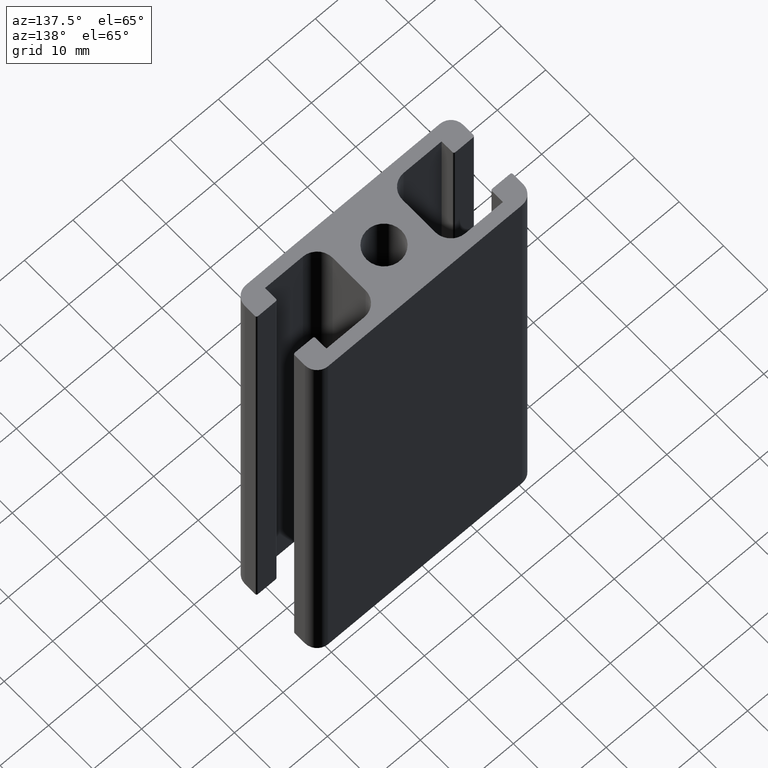
[diagram: clean part render]
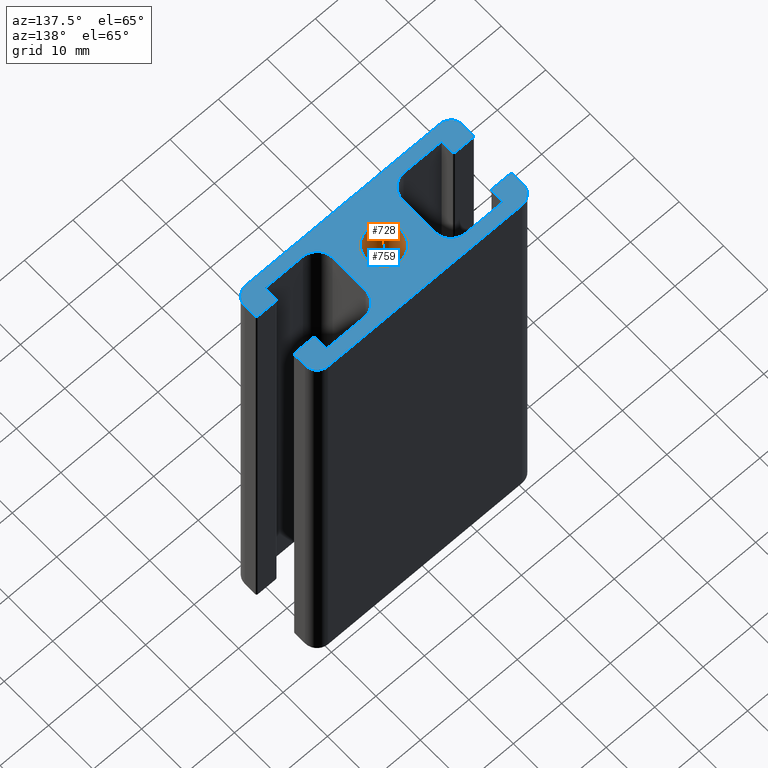
[diagram: same view with the hole feature highlighted: cylindrical wall and planar end face, labeled with their STEP entity ids]
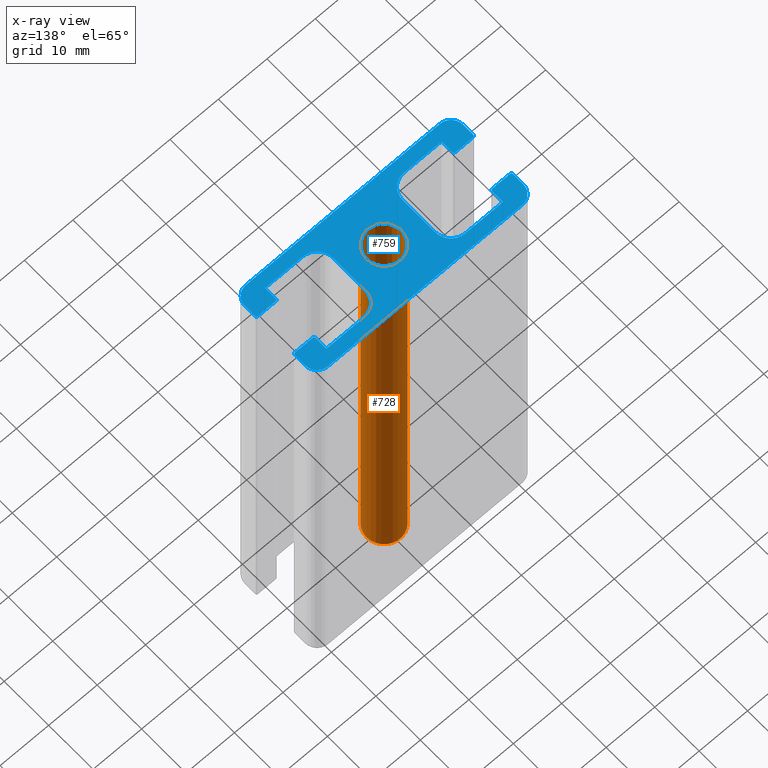
[diagram: x-ray of the same camera — body ghosted, the hole faces saturated]
A machine part, auxiliary view. The highlighted faces form one hole feature of diameter 7.2 mm: the cylindrical wall (entity #728, orange) and its adjacent planar end face (entity #759, blue) — they share a circular edge in the B-rep.
The next image is the same camera in x-ray (body ghosted, the hole faces saturated) — the bore reads through the body.
Wall:
#189=FACE_BOUND('',#232,.T.);
#192=FACE_OUTER_BOUND('',#231,.T.);
#231=EDGE_LOOP('',(#491));
#232=EDGE_LOOP('',(#492));
#273=CIRCLE('',#770,3.6);
#274=CIRCLE('',#771,3.6);
#307=VERTEX_POINT('',#1068);
#308=VERTEX_POINT('',#1070);
#381=EDGE_CURVE('',#307,#307,#273,.T.);
#382=EDGE_CURVE('',#308,#308,#274,.T.);
#491=ORIENTED_EDGE('',*,*,#381,.F.);
#492=ORIENTED_EDGE('',*,*,#382,.F.);
#711=CYLINDRICAL_SURFACE('',#769,3.6);
#728=ADVANCED_FACE('',(#192,#189),#711,.F.);
#769=AXIS2_PLACEMENT_3D('',#1067,#844,#845);
#770=AXIS2_PLACEMENT_3D('',#1069,#846,#847);
#771=AXIS2_PLACEMENT_3D('',#1071,#848,#849);
#844=DIRECTION('center_axis',(0.,0.,1.));
#845=DIRECTION('ref_axis',(-1.,0.,0.));
#846=DIRECTION('center_axis',(0.,0.,-1.));
#847=DIRECTION('ref_axis',(-1.,0.,0.));
#848=DIRECTION('center_axis',(0.,0.,1.));
#849=DIRECTION('ref_axis',(-1.,0.,0.));
#1067=CARTESIAN_POINT('Origin',(0.,0.,0.));
#1068=CARTESIAN_POINT('',(3.6,-4.40872847693047E-16,100.));
#1069=CARTESIAN_POINT('Origin',(0.,0.,100.));
#1070=CARTESIAN_POINT('',(3.6,4.40872847693047E-16,0.));
#1071=CARTESIAN_POINT('Origin',(0.,0.,0.));
End face:
#33=PLANE('',#826);
#39=LINE('',#1083,#115);
#43=LINE('',#1095,#119);
#46=LINE('',#1101,#122);
#50=LINE('',#1113,#126);
#54=LINE('',#1125,#130);
#57=LINE('',#1131,#133);
#61=LINE('',#1143,#137);
#67=LINE('',#1164,#143);
#71=LINE('',#1176,#147);
#74=LINE('',#1182,#150);
#78=LINE('',#1194,#154);
#84=LINE('',#1215,#160);
#88=LINE('',#1227,#164);
#91=LINE('',#1232,#167);
#95=LINE('',#1239,#171);
#96=LINE('',#1242,#172);
#101=LINE('',#1251,#177);
#102=LINE('',#1254,#178);
#105=LINE('',#1262,#181);
#106=LINE('',#1267,#182);
#115=VECTOR('',#860,3.7);
#119=VECTOR('',#872,2.45);
#122=VECTOR('',#877,7.8);
#126=VECTOR('',#889,7.4);
#130=VECTOR('',#901,7.8);
#133=VECTOR('',#906,2.45);
#137=VECTOR('',#918,3.7);
#143=VECTOR('',#938,7.4);
#147=VECTOR('',#950,7.8);
#150=VECTOR('',#955,2.45);
#154=VECTOR('',#967,3.7);
#160=VECTOR('',#987,3.7);
#164=VECTOR('',#999,2.45);
#167=VECTOR('',#1004,7.8);
#171=VECTOR('',#1010,2.3);
#172=VECTOR('',#1013,2.30000000000058);
#177=VECTOR('',#1020,2.3);
#178=VECTOR('',#1023,2.3000000000006);
#181=VECTOR('',#1030,40.);
#182=VECTOR('',#1035,40.);
#190=FACE_BOUND('',#264,.T.);
#223=FACE_OUTER_BOUND('',#263,.T.);
#263=EDGE_LOOP('',(#613,#614,#615,#616,#617,#618,#619,#620,#621,#622,#623,
#624,#625,#626,#627,#628,#629,#630,#631,#632,#633,#634,#635,#636,#637,#638,
#639,#640,#641,#642,#643,#644,#645,#646,#647,#648));
#264=EDGE_LOOP('',(#649));
#273=CIRCLE('',#770,3.6);
#275=CIRCLE('',#773,0.299999999999404);
#277=CIRCLE('',#777,0.299999999999406);
#279=CIRCLE('',#782,3.19999999999359);
#281=CIRCLE('',#786,3.19999999999362);
#283=CIRCLE('',#791,0.299999999999404);
#285=CIRCLE('',#795,0.299999999999407);
#287=CIRCLE('',#798,3.1999999999936);
#289=CIRCLE('',#802,3.1999999999936);
#291=CIRCLE('',#807,0.299999999999406);
#293=CIRCLE('',#811,0.299999999999397);
#295=CIRCLE('',#814,0.299999999999399);
#297=CIRCLE('',#818,0.299999999999404);
#299=CIRCLE('',#827,2.5);
#300=CIRCLE('',#828,2.5);
#301=CIRCLE('',#829,2.5);
#302=CIRCLE('',#830,2.5);
#307=VERTEX_POINT('',#1068);
#309=VERTEX_POINT('',#1073);
#310=VERTEX_POINT('',#1074);
#313=VERTEX_POINT('',#1082);
#315=VERTEX_POINT('',#1088);
#317=VERTEX_POINT('',#1094);
#319=VERTEX_POINT('',#1100);
#321=VERTEX_POINT('',#1106);
#323=VERTEX_POINT('',#1112);
#325=VERTEX_POINT('',#1118);
#327=VERTEX_POINT('',#1124);
#329=VERTEX_POINT('',#1130);
#331=VERTEX_POINT('',#1136);
#333=VERTEX_POINT('',#1142);
#335=VERTEX_POINT('',#1148);
#337=VERTEX_POINT('',#1154);
#338=VERTEX_POINT('',#1155);
#341=VERTEX_POINT('',#1163);
#343=VERTEX_POINT('',#1169);
#345=VERTEX_POINT('',#1175);
#347=VERTEX_POINT('',#1181);
#349=VERTEX_POINT('',#1187);
#351=VERTEX_POINT('',#1193);
#353=VERTEX_POINT('',#1199);
#355=VERTEX_POINT('',#1205);
#356=VERTEX_POINT('',#1206);
#359=VERTEX_POINT('',#1214);
#361=VERTEX_POINT('',#1220);
#363=VERTEX_POINT('',#1226);
#366=VERTEX_POINT('',#1237);
#367=VERTEX_POINT('',#1241);
#370=VERTEX_POINT('',#1249);
#371=VERTEX_POINT('',#1253);
#373=VERTEX_POINT('',#1259);
#374=VERTEX_POINT('',#1261);
#375=VERTEX_POINT('',#1264);
#376=VERTEX_POINT('',#1266);
#381=EDGE_CURVE('',#307,#307,#273,.T.);
#383=EDGE_CURVE('',#309,#310,#275,.T.);
#387=EDGE_CURVE('',#310,#313,#39,.T.);
#390=EDGE_CURVE('',#313,#315,#277,.T.);
#393=EDGE_CURVE('',#315,#317,#43,.T.);
#396=EDGE_CURVE('',#317,#319,#46,.T.);
#399=EDGE_CURVE('',#319,#321,#279,.T.);
#402=EDGE_CURVE('',#321,#323,#50,.T.);
#405=EDGE_CURVE('',#323,#325,#281,.T.);
#408=EDGE_CURVE('',#325,#327,#54,.T.);
#411=EDGE_CURVE('',#327,#329,#57,.T.);
#414=EDGE_CURVE('',#329,#331,#283,.T.);
#417=EDGE_CURVE('',#331,#333,#61,.T.);
#420=EDGE_CURVE('',#333,#335,#285,.T.);
#423=EDGE_CURVE('',#337,#338,#287,.T.);
#427=EDGE_CURVE('',#341,#337,#67,.T.);
#430=EDGE_CURVE('',#343,#341,#289,.T.);
#433=EDGE_CURVE('',#345,#343,#71,.T.);
#436=EDGE_CURVE('',#347,#345,#74,.T.);
#439=EDGE_CURVE('',#349,#347,#291,.T.);
#442=EDGE_CURVE('',#351,#349,#78,.T.);
#445=EDGE_CURVE('',#353,#351,#293,.T.);
#448=EDGE_CURVE('',#355,#356,#295,.T.);
#452=EDGE_CURVE('',#359,#355,#84,.T.);
#455=EDGE_CURVE('',#361,#359,#297,.T.);
#458=EDGE_CURVE('',#363,#361,#88,.T.);
#461=EDGE_CURVE('',#338,#363,#91,.T.);
#465=EDGE_CURVE('',#366,#335,#95,.T.);
#466=EDGE_CURVE('',#309,#367,#96,.T.);
#471=EDGE_CURVE('',#370,#356,#101,.T.);
#472=EDGE_CURVE('',#353,#371,#102,.T.);
#475=EDGE_CURVE('',#373,#366,#299,.T.);
#476=EDGE_CURVE('',#374,#373,#105,.T.);
#477=EDGE_CURVE('',#371,#374,#300,.T.);
#478=EDGE_CURVE('',#375,#370,#301,.T.);
#479=EDGE_CURVE('',#376,#375,#106,.T.);
#480=EDGE_CURVE('',#367,#376,#302,.T.);
#613=ORIENTED_EDGE('',*,*,#383,.T.);
#614=ORIENTED_EDGE('',*,*,#387,.T.);
#615=ORIENTED_EDGE('',*,*,#390,.T.);
#616=ORIENTED_EDGE('',*,*,#393,.T.);
#617=ORIENTED_EDGE('',*,*,#396,.T.);
#618=ORIENTED_EDGE('',*,*,#399,.T.);
#619=ORIENTED_EDGE('',*,*,#402,.T.);
#620=ORIENTED_EDGE('',*,*,#405,.T.);
#621=ORIENTED_EDGE('',*,*,#408,.T.);
#622=ORIENTED_EDGE('',*,*,#411,.T.);
#623=ORIENTED_EDGE('',*,*,#414,.T.);
#624=ORIENTED_EDGE('',*,*,#417,.T.);
#625=ORIENTED_EDGE('',*,*,#420,.T.);
#626=ORIENTED_EDGE('',*,*,#465,.F.);
#627=ORIENTED_EDGE('',*,*,#475,.F.);
#628=ORIENTED_EDGE('',*,*,#476,.F.);
#629=ORIENTED_EDGE('',*,*,#477,.F.);
#630=ORIENTED_EDGE('',*,*,#472,.F.);
#631=ORIENTED_EDGE('',*,*,#445,.T.);
#632=ORIENTED_EDGE('',*,*,#442,.T.);
#633=ORIENTED_EDGE('',*,*,#439,.T.);
#634=ORIENTED_EDGE('',*,*,#436,.T.);
#635=ORIENTED_EDGE('',*,*,#433,.T.);
#636=ORIENTED_EDGE('',*,*,#430,.T.);
#637=ORIENTED_EDGE('',*,*,#427,.T.);
#638=ORIENTED_EDGE('',*,*,#423,.T.);
#639=ORIENTED_EDGE('',*,*,#461,.T.);
#640=ORIENTED_EDGE('',*,*,#458,.T.);
#641=ORIENTED_EDGE('',*,*,#455,.T.);
#642=ORIENTED_EDGE('',*,*,#452,.T.);
#643=ORIENTED_EDGE('',*,*,#448,.T.);
#644=ORIENTED_EDGE('',*,*,#471,.F.);
#645=ORIENTED_EDGE('',*,*,#478,.F.);
#646=ORIENTED_EDGE('',*,*,#479,.F.);
#647=ORIENTED_EDGE('',*,*,#480,.F.);
#648=ORIENTED_EDGE('',*,*,#466,.F.);
#649=ORIENTED_EDGE('',*,*,#381,.T.);
#759=ADVANCED_FACE('',(#223,#190),#33,.T.);
#770=AXIS2_PLACEMENT_3D('',#1069,#846,#847);
#773=AXIS2_PLACEMENT_3D('',#1075,#852,#853);
#777=AXIS2_PLACEMENT_3D('',#1089,#865,#866);
#782=AXIS2_PLACEMENT_3D('',#1107,#882,#883);
#786=AXIS2_PLACEMENT_3D('',#1119,#894,#895);
#791=AXIS2_PLACEMENT_3D('',#1137,#911,#912);
#795=AXIS2_PLACEMENT_3D('',#1149,#923,#924);
#798=AXIS2_PLACEMENT_3D('',#1156,#930,#931);
#802=AXIS2_PLACEMENT_3D('',#1170,#943,#944);
#807=AXIS2_PLACEMENT_3D('',#1188,#960,#961);
#811=AXIS2_PLACEMENT_3D('',#1200,#972,#973);
#814=AXIS2_PLACEMENT_3D('',#1207,#979,#980);
#818=AXIS2_PLACEMENT_3D('',#1221,#992,#993);
#826=AXIS2_PLACEMENT_3D('',#1258,#1026,#1027);
#827=AXIS2_PLACEMENT_3D('',#1260,#1028,#1029);
#828=AXIS2_PLACEMENT_3D('',#1263,#1031,#1032);
#829=AXIS2_PLACEMENT_3D('',#1265,#1033,#1034);
#830=AXIS2_PLACEMENT_3D('',#1268,#1036,#1037);
#846=DIRECTION('center_axis',(0.,0.,-1.));
#847=DIRECTION('ref_axis',(-1.,0.,0.));
#852=DIRECTION('center_axis',(0.,0.,1.));
#853=DIRECTION('ref_axis',(1.,-2.22044604925486E-14,0.));
#860=DIRECTION('',(1.,3.20764436033592E-13,0.));
#865=DIRECTION('center_axis',(0.,0.,1.));
#866=DIRECTION('ref_axis',(1.9761969838367E-12,1.,0.));
#872=DIRECTION('',(9.06304509898087E-16,1.,0.));
#877=DIRECTION('',(1.,-1.6425607313044E-12,0.));
#882=DIRECTION('center_axis',(0.,0.,-1.));
#883=DIRECTION('ref_axis',(1.,2.00135047423845E-12,0.));
#889=DIRECTION('',(-1.72549662246134E-12,-1.,0.));
#894=DIRECTION('center_axis',(0.,0.,-1.));
#895=DIRECTION('ref_axis',(1.99423810798692E-12,-1.,0.));
#901=DIRECTION('',(-1.,2.84672570416707E-16,0.));
#906=DIRECTION('',(-4.85779217305375E-13,1.,0.));
#911=DIRECTION('center_axis',(0.,0.,1.));
#912=DIRECTION('ref_axis',(-1.,1.97989772725214E-12,0.));
#918=DIRECTION('',(-1.,-3.20464375756667E-13,0.));
#923=DIRECTION('center_axis',(0.,0.,1.));
#924=DIRECTION('ref_axis',(-1.98359847066754E-12,-1.,0.));
#930=DIRECTION('center_axis',(0.,0.,-1.));
#931=DIRECTION('ref_axis',(-1.99840144432928E-12,1.,0.));
#938=DIRECTION('',(1.7296974663383E-12,1.,0.));
#943=DIRECTION('center_axis',(0.,0.,-1.));
#944=DIRECTION('ref_axis',(-1.,-1.99909533371967E-12,0.));
#950=DIRECTION('',(-1.,1.6408526958819E-12,0.));
#955=DIRECTION('',(-9.06304509898087E-16,-1.,0.));
#960=DIRECTION('center_axis',(0.,0.,1.));
#961=DIRECTION('ref_axis',(-1.9761969838367E-12,-1.,0.));
#967=DIRECTION('',(-1.,-3.20764436033592E-13,0.));
#972=DIRECTION('center_axis',(0.,0.,1.));
#973=DIRECTION('ref_axis',(-1.,-1.2952601954365E-14,0.));
#979=DIRECTION('center_axis',(0.,0.,1.));
#980=DIRECTION('ref_axis',(2.01320441799098E-12,1.,0.));
#987=DIRECTION('',(1.,3.24365159356701E-13,0.));
#992=DIRECTION('center_axis',(0.,0.,1.));
#993=DIRECTION('ref_axis',(1.,-1.97989772725214E-12,0.));
#999=DIRECTION('',(4.85779217305375E-13,-1.,0.));
#1004=DIRECTION('',(1.,-1.42336285208353E-16,0.));
#1010=DIRECTION('',(0.,1.,0.));
#1013=DIRECTION('',(0.,1.,0.));
#1020=DIRECTION('',(0.,-1.,0.));
#1023=DIRECTION('',(0.,-1.,0.));
#1026=DIRECTION('center_axis',(0.,0.,1.));
#1027=DIRECTION('ref_axis',(1.,0.,0.));
#1028=DIRECTION('center_axis',(0.,0.,-1.));
#1029=DIRECTION('ref_axis',(1.,-4.44089209850063E-16,0.));
#1030=DIRECTION('',(-1.,0.,0.));
#1031=DIRECTION('center_axis',(0.,0.,-1.));
#1032=DIRECTION('ref_axis',(0.,1.,0.));
#1033=DIRECTION('center_axis',(0.,0.,-1.));
#1034=DIRECTION('ref_axis',(-1.,4.44089209850063E-16,0.));
#1035=DIRECTION('',(1.,0.,0.));
#1036=DIRECTION('center_axis',(0.,0.,-1.));
#1037=DIRECTION('ref_axis',(0.,-1.,0.));
#1068=CARTESIAN_POINT('',(3.6,-4.40872847693047E-16,100.));
#1069=CARTESIAN_POINT('Origin',(0.,0.,100.));
#1073=CARTESIAN_POINT('',(-22.4999999999988,4.44999999999942,100.));
#1074=CARTESIAN_POINT('',(-22.2,4.15000000000001,100.));
#1075=CARTESIAN_POINT('Origin',(-22.1999999999994,4.44999999999941,100.));
#1082=CARTESIAN_POINT('',(-18.5,4.15000000000119,100.));
#1083=CARTESIAN_POINT('',(-11.1000000000007,4.15000000000357,100.));
#1088=CARTESIAN_POINT('',(-18.2,4.45,100.));
#1089=CARTESIAN_POINT('Origin',(-18.4999999999994,4.4500000000006,100.));
#1094=CARTESIAN_POINT('',(-18.2,6.9,100.));
#1095=CARTESIAN_POINT('',(-18.2,2.22500000000001,100.));
#1100=CARTESIAN_POINT('',(-10.4,6.89999999998719,100.));
#1101=CARTESIAN_POINT('',(-9.09999999999433,6.89999999998506,100.));
#1106=CARTESIAN_POINT('',(-7.2,3.7,100.));
#1107=CARTESIAN_POINT('Origin',(-10.3999999999936,3.6999999999936,100.));
#1112=CARTESIAN_POINT('',(-7.20000000001277,-3.7,100.));
#1113=CARTESIAN_POINT('',(-7.20000000000319,1.85000000000621,100.));
#1118=CARTESIAN_POINT('',(-10.4,-6.9,100.));
#1119=CARTESIAN_POINT('Origin',(-10.4000000000064,-3.70000000000638,100.));
#1124=CARTESIAN_POINT('',(-18.2,-6.9,100.));
#1125=CARTESIAN_POINT('',(-5.2,-6.9,100.));
#1130=CARTESIAN_POINT('',(-18.2000000000012,-4.45,100.));
#1131=CARTESIAN_POINT('',(-18.2000000000017,-3.45000000000442,100.));
#1136=CARTESIAN_POINT('',(-18.5,-4.15,100.));
#1137=CARTESIAN_POINT('Origin',(-18.5000000000006,-4.4499999999994,100.));
#1142=CARTESIAN_POINT('',(-22.2,-4.15000000000118,100.));
#1143=CARTESIAN_POINT('',(-9.24999999999934,-4.14999999999703,100.));
#1148=CARTESIAN_POINT('',(-22.4999999999988,-4.45,100.));
#1149=CARTESIAN_POINT('Origin',(-22.2000000000006,-4.45000000000059,100.));
#1154=CARTESIAN_POINT('',(7.2000000000128,3.7,100.));
#1155=CARTESIAN_POINT('',(10.4,6.9,100.));
#1156=CARTESIAN_POINT('Origin',(10.4000000000064,3.7000000000064,100.));
#1163=CARTESIAN_POINT('',(7.2,-3.7,100.));
#1164=CARTESIAN_POINT('',(7.2000000000032,-1.85000000000623,100.));
#1169=CARTESIAN_POINT('',(10.4,-6.89999999998721,100.));
#1170=CARTESIAN_POINT('Origin',(10.3999999999936,-3.6999999999936,100.));
#1175=CARTESIAN_POINT('',(18.2,-6.9,100.));
#1176=CARTESIAN_POINT('',(9.09999999999434,-6.89999999998507,100.));
#1181=CARTESIAN_POINT('',(18.2,-4.45,100.));
#1182=CARTESIAN_POINT('',(18.2,-2.22500000000001,100.));
#1187=CARTESIAN_POINT('',(18.5,-4.15000000000119,100.));
#1188=CARTESIAN_POINT('Origin',(18.4999999999994,-4.4500000000006,100.));
#1193=CARTESIAN_POINT('',(22.2,-4.15000000000001,100.));
#1194=CARTESIAN_POINT('',(11.1000000000007,-4.15000000000357,100.));
#1199=CARTESIAN_POINT('',(22.49999999999,-4.4499999999994,100.));
#1200=CARTESIAN_POINT('Origin',(22.1999999999994,-4.4499999999994,100.));
#1205=CARTESIAN_POINT('',(22.2,4.1500000000012,100.));
#1206=CARTESIAN_POINT('',(22.49999999999,4.45,100.));
#1207=CARTESIAN_POINT('Origin',(22.2000000000006,4.4500000000006,100.));
#1214=CARTESIAN_POINT('',(18.5,4.15,100.));
#1215=CARTESIAN_POINT('',(9.24999999999933,4.149999999997,100.));
#1220=CARTESIAN_POINT('',(18.2000000000012,4.45,100.));
#1221=CARTESIAN_POINT('Origin',(18.5000000000006,4.4499999999994,100.));
#1226=CARTESIAN_POINT('',(18.2,6.9,100.));
#1227=CARTESIAN_POINT('',(18.2000000000017,3.45000000000442,100.));
#1232=CARTESIAN_POINT('',(5.2,6.9,100.));
#1237=CARTESIAN_POINT('',(-22.5,-6.75,100.));
#1239=CARTESIAN_POINT('',(-22.5,3.375,100.));
#1241=CARTESIAN_POINT('',(-22.5,6.75,100.));
#1242=CARTESIAN_POINT('',(-22.5,3.375,100.));
#1249=CARTESIAN_POINT('',(22.5,6.75,100.));
#1251=CARTESIAN_POINT('',(22.5,-3.375,100.));
#1253=CARTESIAN_POINT('',(22.5,-6.75,100.));
#1254=CARTESIAN_POINT('',(22.5,-3.375,100.));
#1258=CARTESIAN_POINT('Origin',(0.,0.,100.));
#1259=CARTESIAN_POINT('',(-20.,-9.25,100.));
#1260=CARTESIAN_POINT('Origin',(-20.,-6.75,100.));
#1261=CARTESIAN_POINT('',(20.,-9.25,100.));
#1262=CARTESIAN_POINT('',(-10.,-9.25,100.));
#1263=CARTESIAN_POINT('Origin',(20.,-6.75,100.));
#1264=CARTESIAN_POINT('',(20.,9.25,100.));
#1265=CARTESIAN_POINT('Origin',(20.,6.75,100.));
#1266=CARTESIAN_POINT('',(-20.,9.25,100.));
#1267=CARTESIAN_POINT('',(10.,9.25,100.));
#1268=CARTESIAN_POINT('Origin',(-20.,6.75,100.));